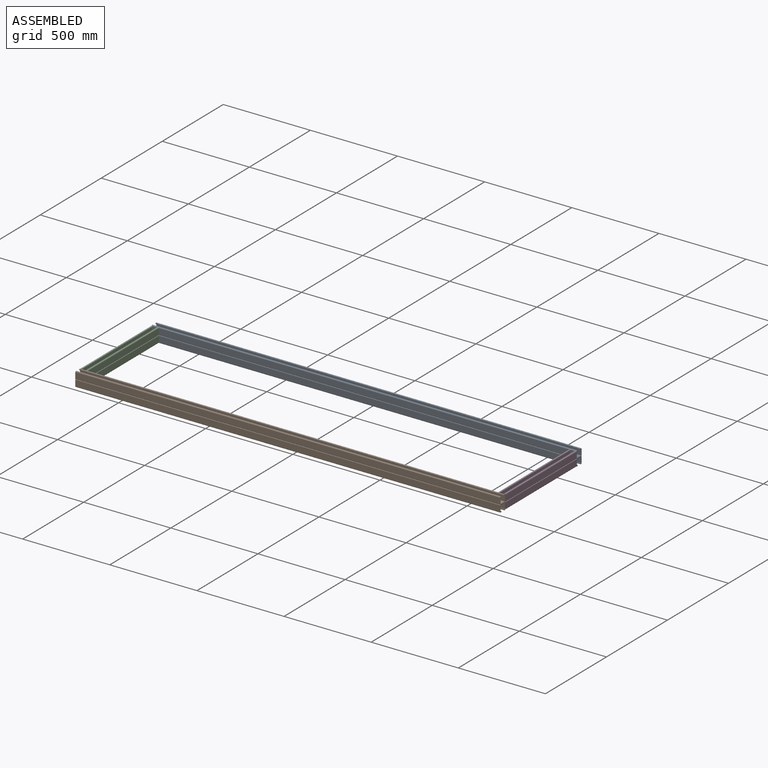
[diagram: assembled view]
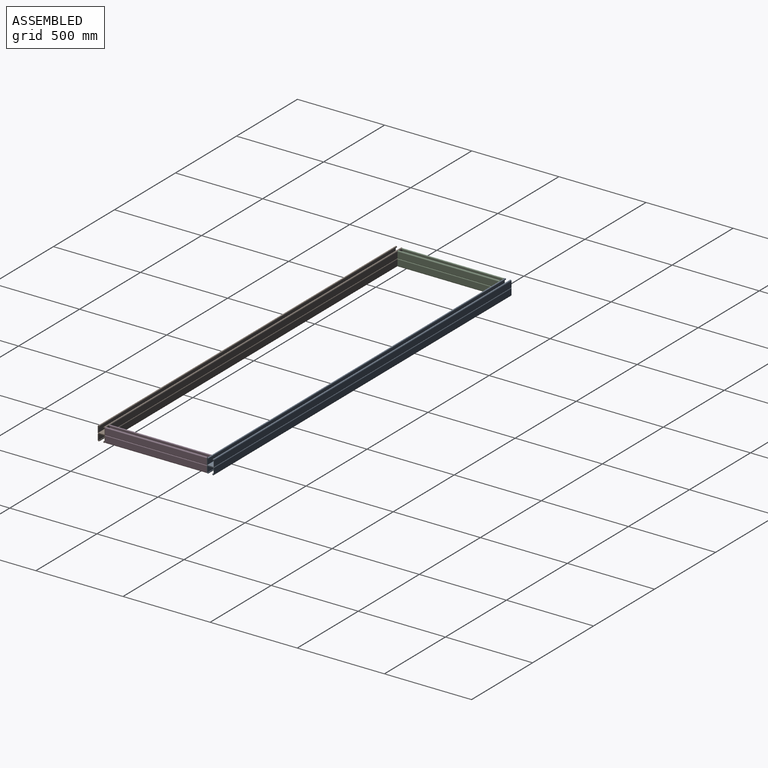
[diagram: assembled view, second angle]
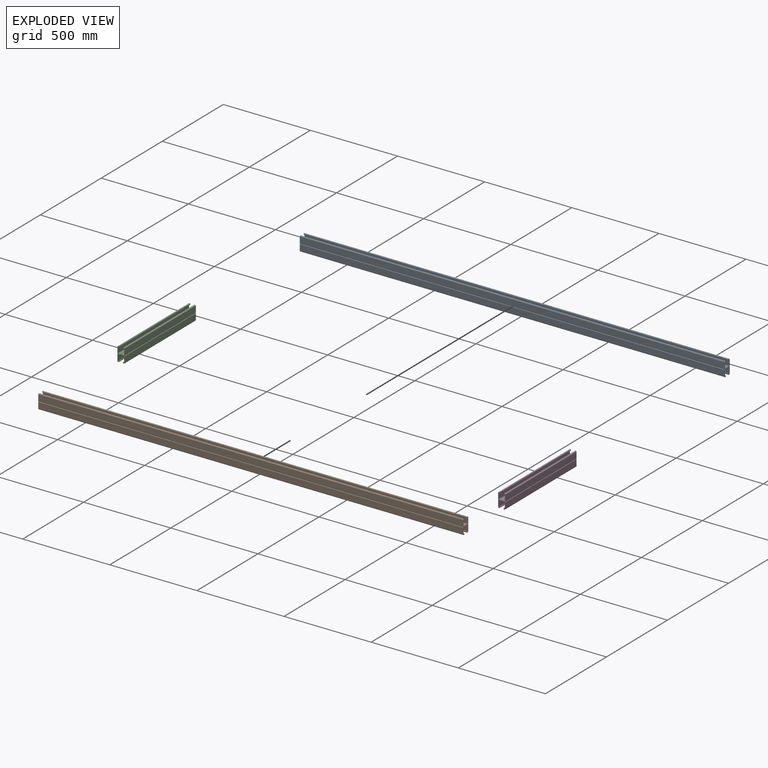
[diagram: exploded view]
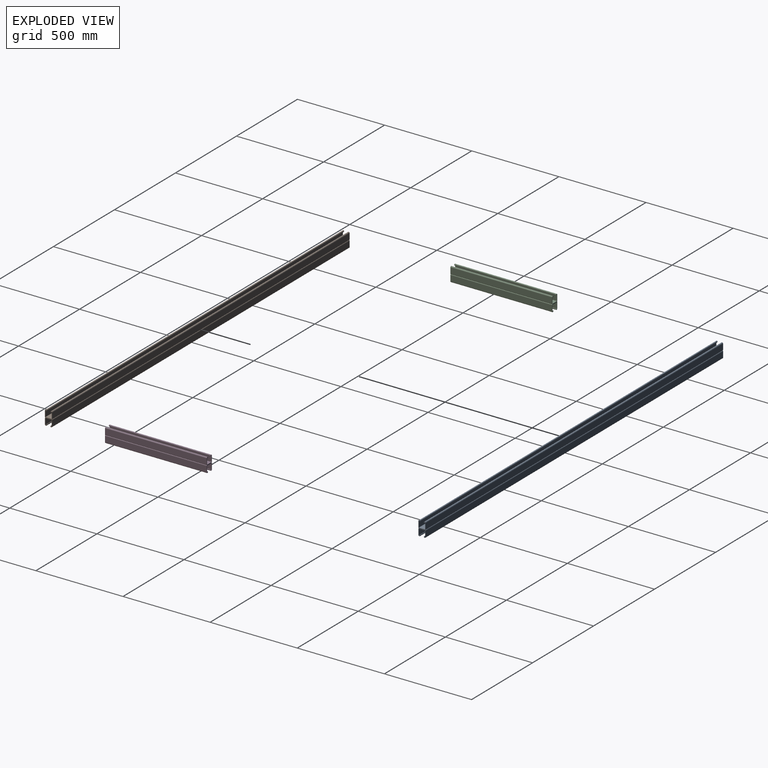
[diagram: exploded view, second angle]
ASSEMBLY  parts=4 mates=3
PART A: 56 faces, bbox 41.3x82.6x2438.4 mm
  f0: plane 2438.4x34.35mm, normal (0,1,0), area 83767.6mm2, adj f42,f43,f54,f55
  f1: plane 2438.4x32.77mm, normal (-1,0,0), area 79896.6mm2, adj f43,f44,f54,f55
  f2: plane 2438.4x2.34mm, normal (1,0,0), area 5713.5mm2, adj f26,f45,f54,f55
  f3: plane 2438.4x1.02mm, normal (0,1,0), area 2477.4mm2, adj f27,f28,f54,f55
  f4: plane 2438.4x1.02mm, normal (0,-1,0), area 2477.4mm2, adj f31,f32,f54,f55
  f5: plane 2438.4x2.34mm, normal (1,0,0), area 5713.5mm2, adj f33,f46,f54,f55
  f6: plane 2438.4x32.77mm, normal (-1,0,0), area 79896.6mm2, adj f47,f48,f54,f55
  f7: plane 2438.4x34.35mm, normal (0,-1,0), area 83767.6mm2, adj f48,f49,f54,f55
  f8: plane 2438.4x32.77mm, normal (1,0,0), area 79896.6mm2, adj f49,f50,f54,f55
  f9: plane 2438.4x32.77mm, normal (1,0,0), area 79896.6mm2, adj f42,f53,f54,f55
  f10: plane 2438.4x1.02mm, normal (0,-1,0), area 2477.4mm2, adj f44,f45,f54,f55
  f11: plane 2438.4x2.34mm, normal (-1,0,0), area 5713.5mm2, adj f26,f27,f54,f55
  f12: plane 2438.4x32.77mm, normal (1,0,0), area 79896.6mm2, adj f28,f29,f54,f55
  f13: plane 2438.4x32.77mm, normal (1,0,0), area 79896.6mm2, adj f30,f31,f54,f55
  f14: plane 2438.4x2.34mm, normal (-1,0,0), area 5713.5mm2, adj f32,f33,f54,f55
  f15: plane 2438.4x1.02mm, normal (0,1,0), area 2477.4mm2, adj f46,f47,f54,f55
  f16: plane 2438.4x1.02mm, normal (0,1,0), area 2477.4mm2, adj f50,f51,f54,f55
  f17: plane 2438.4x2.34mm, normal (-1,0,0), area 5713.5mm2, adj f34,f51,f54,f55
  f18: plane 2438.4x2.34mm, normal (1,0,0), area 5713.5mm2, adj f34,f35,f54,f55
  f19: plane 2438.4x1.02mm, normal (0,-1,0), area 2477.4mm2, adj f35,f36,f54,f55
  f20: plane 2438.4x32.77mm, normal (-1,0,0), area 79896.6mm2, adj f36,f37,f54,f55
  f21: plane 2438.4x32.77mm, normal (-1,0,0), area 79896.6mm2, adj f38,f39,f54,f55
  f22: plane 2438.4x1.02mm, normal (0,1,0), area 2477.4mm2, adj f39,f40,f54,f55
  f23: plane 2438.4x2.34mm, normal (1,0,0), area 5713.5mm2, adj f40,f41,f54,f55
  f24: plane 2438.4x2.34mm, normal (-1,0,0), area 5713.5mm2, adj f41,f52,f54,f55
  f25: plane 2438.4x1.02mm, normal (0,-1,0), area 2477.4mm2, adj f52,f53,f54,f55
  f26: cylinder r=1.33mm len=2438.4mm, axis (0,0,-1), area 10215.2mm2, adj f2,f11,f54,f55
  f27: cylinder r=3.46mm len=2438.4mm, axis (0,0,-1), area 13255.5mm2, adj f3,f11,f54,f55
  f28: cylinder r=5.05mm len=2438.4mm, axis (0,0,-1), area 19336mm2, adj f3,f12,f54,f55
  f29: cylinder r=3.46mm len=2438.4mm, axis (0,0,-1), area 13255.5mm2, adj f12,f30,f54,f55
  f30: cylinder r=3.46mm len=2438.4mm, axis (0,0,-1), area 13255.5mm2, adj f13,f29,f54,f55
  f31: cylinder r=5.05mm len=2438.4mm, axis (0,0,-1), area 19336mm2, adj f4,f13,f54,f55
  f32: cylinder r=3.46mm len=2438.4mm, axis (0,0,-1), area 13255.5mm2, adj f4,f14,f54,f55
  f33: cylinder r=1.33mm len=2438.4mm, axis (0,0,-1), area 10215.2mm2, adj f5,f14,f54,f55
  f34: cylinder r=1.33mm len=2438.4mm, axis (0,0,-1), area 10215.2mm2, adj f17,f18,f54,f55
  f35: cylinder r=3.46mm len=2438.4mm, axis (0,0,-1), area 13255.5mm2, adj f18,f19,f54,f55
  f36: cylinder r=5.05mm len=2438.4mm, axis (0,0,-1), area 19336mm2, adj f19,f20,f54,f55
  f37: cylinder r=3.46mm len=2438.4mm, axis (0,0,-1), area 13255.5mm2, adj f20,f38,f54,f55
  f38: cylinder r=3.46mm len=2438.4mm, axis (0,0,-1), area 13255.5mm2, adj f21,f37,f54,f55
  f39: cylinder r=5.05mm len=2438.4mm, axis (0,0,-1), area 19336mm2, adj f21,f22,f54,f55
  f40: cylinder r=3.46mm len=2438.4mm, axis (0,0,-1), area 13255.5mm2, adj f22,f23,f54,f55
  f41: cylinder r=1.33mm len=2438.4mm, axis (0,0,-1), area 10215.2mm2, adj f23,f24,f54,f55
  f42: cylinder r=0.79mm len=2438.4mm, axis (0,0,-1), area 3040.2mm2, adj f0,f9,f54,f55
  f43: cylinder r=0.79mm len=2438.4mm, axis (0,0,-1), area 3040.2mm2, adj f0,f1,f54,f55
  f44: cylinder r=2.38mm len=2438.4mm, axis (0,0,-1), area 9120.7mm2, adj f1,f10,f54,f55
  f45: cylinder r=0.79mm len=2438.4mm, axis (0,0,-1), area 3040.2mm2, adj f2,f10,f54,f55
  f46: cylinder r=0.79mm len=2438.4mm, axis (0,0,-1), area 3040.2mm2, adj f5,f15,f54,f55
  f47: cylinder r=2.38mm len=2438.4mm, axis (0,0,-1), area 9120.7mm2, adj f6,f15,f54,f55
  f48: cylinder r=0.79mm len=2438.4mm, axis (0,0,-1), area 3040.2mm2, adj f6,f7,f54,f55
  f49: cylinder r=0.79mm len=2438.4mm, axis (0,0,-1), area 3040.2mm2, adj f7,f8,f54,f55
  f50: cylinder r=2.38mm len=2438.4mm, axis (0,0,-1), area 9120.7mm2, adj f8,f16,f54,f55
  f51: cylinder r=0.79mm len=2438.4mm, axis (0,0,-1), area 3040.2mm2, adj f16,f17,f54,f55
  f52: cylinder r=0.79mm len=2438.4mm, axis (0,0,-1), area 3040.2mm2, adj f24,f25,f54,f55
  f53: cylinder r=2.38mm len=2438.4mm, axis (0,0,-1), area 9120.7mm2, adj f9,f25,f54,f55
  f54: plane 82.55x41.28mm, normal (0,0,-1), area 713.3mm2, adj f0,f1,f2,f3,f4,f5,f6,f7
  f55: plane 82.55x41.28mm, normal (0,0,1), area 713.3mm2, adj f0,f1,f2,f3,f4,f5,f6,f7
PART B: same geometry as A
PART C: 56 faces, bbox 41.3x82.6x584.2 mm
  f0: plane 584.2x34.35mm, normal (0,1,0), area 20069.3mm2, adj f42,f43,f54,f55
  f1: plane 584.2x32.77mm, normal (-1,0,0), area 19141.9mm2, adj f43,f44,f54,f55
  f2: plane 584.2x2.34mm, normal (1,0,0), area 1368.9mm2, adj f26,f45,f54,f55
  f3: plane 584.2x1.02mm, normal (0,1,0), area 593.5mm2, adj f27,f28,f54,f55
  f4: plane 584.2x1.02mm, normal (0,-1,0), area 593.5mm2, adj f31,f32,f54,f55
  f5: plane 584.2x2.34mm, normal (1,0,0), area 1368.9mm2, adj f33,f46,f54,f55
  f6: plane 584.2x32.77mm, normal (-1,0,0), area 19141.9mm2, adj f47,f48,f54,f55
  f7: plane 584.2x34.35mm, normal (0,-1,0), area 20069.3mm2, adj f48,f49,f54,f55
  f8: plane 584.2x32.77mm, normal (1,0,0), area 19141.9mm2, adj f49,f50,f54,f55
  f9: plane 584.2x32.77mm, normal (1,0,0), area 19141.9mm2, adj f42,f53,f54,f55
  f10: plane 584.2x1.02mm, normal (0,-1,0), area 593.5mm2, adj f44,f45,f54,f55
  f11: plane 584.2x2.34mm, normal (-1,0,0), area 1368.9mm2, adj f26,f27,f54,f55
  f12: plane 584.2x32.77mm, normal (1,0,0), area 19141.9mm2, adj f28,f29,f54,f55
  f13: plane 584.2x32.77mm, normal (1,0,0), area 19141.9mm2, adj f30,f31,f54,f55
  f14: plane 584.2x2.34mm, normal (-1,0,0), area 1368.9mm2, adj f32,f33,f54,f55
  f15: plane 584.2x1.02mm, normal (0,1,0), area 593.5mm2, adj f46,f47,f54,f55
  f16: plane 584.2x1.02mm, normal (0,1,0), area 593.5mm2, adj f50,f51,f54,f55
  f17: plane 584.2x2.34mm, normal (-1,0,0), area 1368.9mm2, adj f34,f51,f54,f55
  f18: plane 584.2x2.34mm, normal (1,0,0), area 1368.9mm2, adj f34,f35,f54,f55
  f19: plane 584.2x1.02mm, normal (0,-1,0), area 593.5mm2, adj f35,f36,f54,f55
  f20: plane 584.2x32.77mm, normal (-1,0,0), area 19141.9mm2, adj f36,f37,f54,f55
  f21: plane 584.2x32.77mm, normal (-1,0,0), area 19141.9mm2, adj f38,f39,f54,f55
  f22: plane 584.2x1.02mm, normal (0,1,0), area 593.5mm2, adj f39,f40,f54,f55
  f23: plane 584.2x2.34mm, normal (1,0,0), area 1368.9mm2, adj f40,f41,f54,f55
  f24: plane 584.2x2.34mm, normal (-1,0,0), area 1368.9mm2, adj f41,f52,f54,f55
  f25: plane 584.2x1.02mm, normal (0,-1,0), area 593.5mm2, adj f52,f53,f54,f55
  f26: cylinder r=1.33mm len=584.2mm, axis (0,0,-1), area 2447.4mm2, adj f2,f11,f54,f55
  f27: cylinder r=3.46mm len=584.2mm, axis (0,0,-1), area 3175.8mm2, adj f3,f11,f54,f55
  f28: cylinder r=5.05mm len=584.2mm, axis (0,0,-1), area 4632.6mm2, adj f3,f12,f54,f55
  f29: cylinder r=3.46mm len=584.2mm, axis (0,0,-1), area 3175.8mm2, adj f12,f30,f54,f55
  f30: cylinder r=3.46mm len=584.2mm, axis (0,0,-1), area 3175.8mm2, adj f13,f29,f54,f55
  f31: cylinder r=5.05mm len=584.2mm, axis (0,0,-1), area 4632.6mm2, adj f4,f13,f54,f55
  f32: cylinder r=3.46mm len=584.2mm, axis (0,0,-1), area 3175.8mm2, adj f4,f14,f54,f55
  f33: cylinder r=1.33mm len=584.2mm, axis (0,0,-1), area 2447.4mm2, adj f5,f14,f54,f55
  f34: cylinder r=1.33mm len=584.2mm, axis (0,0,-1), area 2447.4mm2, adj f17,f18,f54,f55
  f35: cylinder r=3.46mm len=584.2mm, axis (0,0,-1), area 3175.8mm2, adj f18,f19,f54,f55
  f36: cylinder r=5.05mm len=584.2mm, axis (0,0,-1), area 4632.6mm2, adj f19,f20,f54,f55
  f37: cylinder r=3.46mm len=584.2mm, axis (0,0,-1), area 3175.8mm2, adj f20,f38,f54,f55
  f38: cylinder r=3.46mm len=584.2mm, axis (0,0,-1), area 3175.8mm2, adj f21,f37,f54,f55
  f39: cylinder r=5.05mm len=584.2mm, axis (0,0,-1), area 4632.6mm2, adj f21,f22,f54,f55
  f40: cylinder r=3.46mm len=584.2mm, axis (0,0,-1), area 3175.8mm2, adj f22,f23,f54,f55
  f41: cylinder r=1.33mm len=584.2mm, axis (0,0,-1), area 2447.4mm2, adj f23,f24,f54,f55
  f42: cylinder r=0.79mm len=584.2mm, axis (0,0,-1), area 728.4mm2, adj f0,f9,f54,f55
  f43: cylinder r=0.79mm len=584.2mm, axis (0,0,-1), area 728.4mm2, adj f0,f1,f54,f55
  f44: cylinder r=2.38mm len=584.2mm, axis (0,0,-1), area 2185.2mm2, adj f1,f10,f54,f55
  f45: cylinder r=0.79mm len=584.2mm, axis (0,0,-1), area 728.4mm2, adj f2,f10,f54,f55
  f46: cylinder r=0.79mm len=584.2mm, axis (0,0,-1), area 728.4mm2, adj f5,f15,f54,f55
  f47: cylinder r=2.38mm len=584.2mm, axis (0,0,-1), area 2185.2mm2, adj f6,f15,f54,f55
  f48: cylinder r=0.79mm len=584.2mm, axis (0,0,-1), area 728.4mm2, adj f6,f7,f54,f55
  f49: cylinder r=0.79mm len=584.2mm, axis (0,0,-1), area 728.4mm2, adj f7,f8,f54,f55
  f50: cylinder r=2.38mm len=584.2mm, axis (0,0,-1), area 2185.2mm2, adj f8,f16,f54,f55
  f51: cylinder r=0.79mm len=584.2mm, axis (0,0,-1), area 728.4mm2, adj f16,f17,f54,f55
  f52: cylinder r=0.79mm len=584.2mm, axis (0,0,-1), area 728.4mm2, adj f24,f25,f54,f55
  f53: cylinder r=2.38mm len=584.2mm, axis (0,0,-1), area 2185.2mm2, adj f9,f25,f54,f55
  f54: plane 82.55x41.28mm, normal (0,0,-1), area 713.3mm2, adj f0,f1,f2,f3,f4,f5,f6,f7
  f55: plane 82.55x41.28mm, normal (0,0,1), area 713.3mm2, adj f0,f1,f2,f3,f4,f5,f6,f7
PART D: same geometry as C
PLACE A rot(axis=(0.58,0.58,0.58),120deg) t=(-1219.2,604.84,-19.84)mm
PLACE B rot(axis=(-0.58,0.58,-0.58),120deg) t=(-1219.2,-20.64,-19.84)mm
PLACE C rot(axis=(0,0.71,0.71),180deg) t=(-1198.56,0,-19.84)mm
PLACE D rot(axis=(1,0,0),90deg) t=(1198.56,584.2,-19.84)mm
MATE fastened C.f54 <-> B.f20  axis (0,-1,0) through (-1219.2,0,16.38)mm
MATE fastened A.f21 <-> C.f55  axis (0,-1,0) through (-1219.2,584.2,16.38)mm
MATE fastened D.f55 <-> B.f20  axis (0,-1,0) through (1219.2,0,16.38)mm
